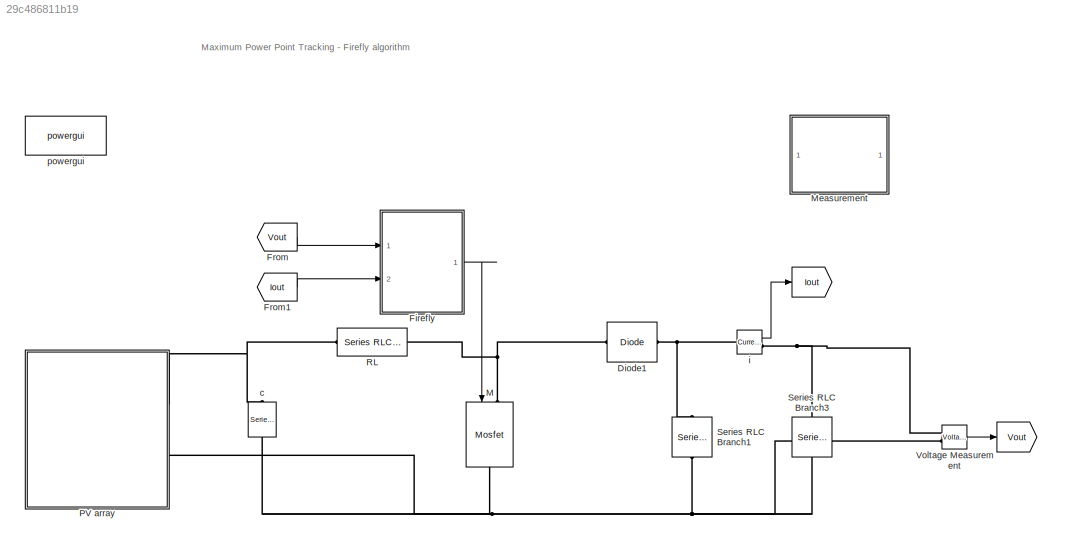
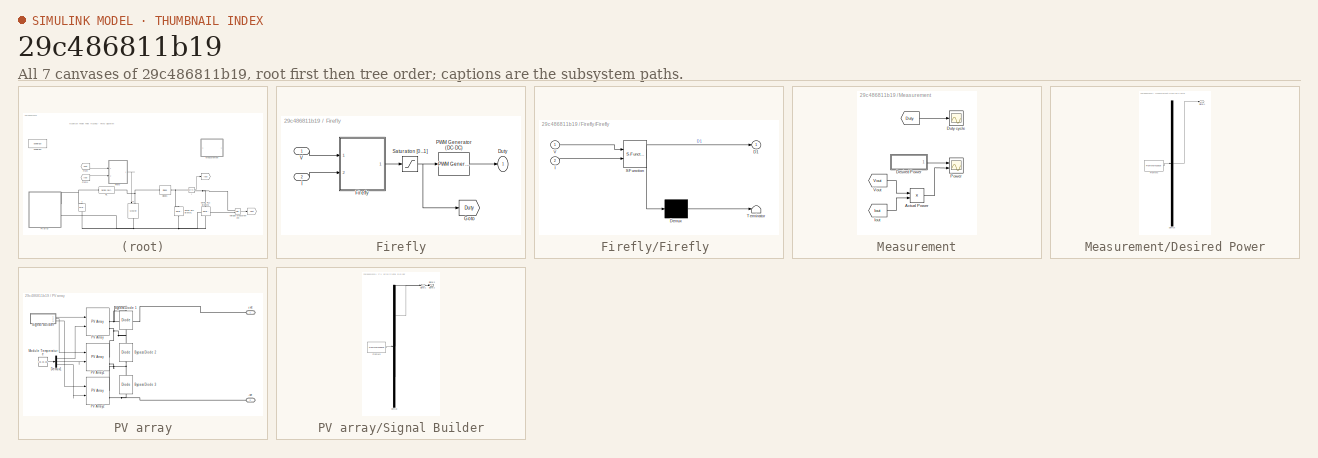
[diagram: thumbnail index - all 7 canvases of the model, root first then tree order]
MODEL slx_29c486811b19
KIND model
CONFIG AbsTol = auto
CONFIG EnableMultiTasking = off
CONFIG FixedStep = auto
CONFIG MaxStep = 1e-4
CONFIG MinStep = auto
CONFIG RelTol = 1e-3
CONFIG SampleTimeConstraint = Unconstrained
CONFIG Solver = ode23s
CONFIG SolverName = ode23s
CONFIG StartTime = 0.0
CONFIG StopTime = 10
BLOCK [Goto]        
  GotoTag = Iout
  TagVisibility = global
BLOCK [Goto]                    
  GotoTag = Vout
  TagVisibility = global
BLOCK [Reference] Diode1  REF=powerlib/Power
Electronics/Diode
  Ports = [0, 0, 0, 0, 0, 1, 1]
  SourceBlock = powerlib/Power\nElectronics/Diode
  SourceProductBaseCode = PS
  SourceProductName = Simscape Power Systems
  SourceType = Diode
BLOCK [SubSystem] Firefly
  Ports = [2, 1]
  RequestExecContextInheritance = off
BLOCK [Outport] Firefly/Duty
  IconDisplay = Port number
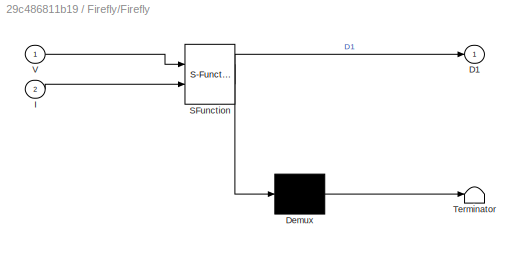
BLOCK [SubSystem] Firefly/Firefly 
  ErrorFcn = Stateflow.Translate.translate
  PermitHierarchicalResolution = ExplicitOnly
  Ports = [2, 1]
  RequestExecContextInheritance = off
  SFBlockType = MATLAB Function
  TreatAsAtomicUnit = on
BLOCK [Demux] Firefly/Firefly / Demux 
  Outputs = 1
  Ports = [1, 1]
BLOCK [S-Function] Firefly/Firefly / SFunction 
  EnableBusSupport = off
  FunctionName = sf_sfun
  PortCounts = [2 2]
  Ports = [2, 2]
  SFcnIsStateOwnerBlock = off
  SFunctionDeploymentMode = off
  Tag = Stateflow S-Function MPPT_Firefly 2
BLOCK [Terminator] Firefly/Firefly / Terminator 
BLOCK [Outport] Firefly/Firefly /D1
  IconDisplay = Port number
BLOCK [Inport] Firefly/Firefly /I
  IconDisplay = Port number
  Port = 2
BLOCK [Inport] Firefly/Firefly /V
  IconDisplay = Port number
BLOCK [Goto] Firefly/Goto
  GotoTag = Duty
  TagVisibility = global
BLOCK [Inport] Firefly/I 
  IconDisplay = Port number
  Port = 2
BLOCK [Reference] Firefly/PWM Generator (DC-DC)  REF=powerlib_meascontrol/Pulse & Signal
Generators/PWM Generator
(DC-DC)
  Ports = [1, 1]
  SourceBlock = powerlib_meascontrol/Pulse & Signal\nGenerators/PWM Generator\n(DC-DC)
  SourceProductBaseCode = PS
  SourceProductName = Simscape Power Systems
  SourceType = PWM Generator (DC-DC)
BLOCK [Saturate] Firefly/Saturation [0...1]
  InputPortMap = u0
  LowerLimit = 0
  Ports = [1, 1]
  UpperLimit = 1
BLOCK [Inport] Firefly/V
  IconDisplay = Port number
BLOCK [From] From
  GotoTag = Vout
  TagVisibility = global
BLOCK [From] From1
  GotoTag = Iout
  TagVisibility = global
BLOCK [Reference] M  REF=powerlib/Power
Electronics/Mosfet
  Ports = [1, 0, 0, 0, 0, 1, 1]
  SourceBlock = powerlib/Power\nElectronics/Mosfet
  SourceProductBaseCode = PS
  SourceProductName = Simscape Power Systems
  SourceType = Mosfet
BLOCK [SubSystem] Measurement
  Ports = []
  RequestExecContextInheritance = off
BLOCK [From] Measurement/ 
  GotoTag = Duty
  TagVisibility = global
BLOCK [Product] Measurement/Actual Power
  InputSameDT = off
  OutDataTypeStr = Inherit: Inherit via internal rule
  Ports = [2, 1]
  RndMeth = Floor
  SaturateOnIntegerOverflow = off
BLOCK [SubSystem] Measurement/Desired Power
  ClipboardFcn = sigbuilder_block('clipboard');
  CloseFcn = sigbuilder_block('close');
  ContinueFcn = sigbuilder_block('continue');
  CopyFcn = sigbuilder_block('copy');
  DeleteFcn = sigbuilder_block('delete');
  LoadFcn = sigbuilder_block('load');
  MaskHideContents = on
  ModelCloseFcn = sigbuilder_block('modelClose');
  NameChangeFcn = sigbuilder_block('namechange');
  OpenFcn = sigbuilder_block('open',[437.25 153 550.5 359.25 ]);
  PauseFcn = sigbuilder_block('pause');
  Ports = [0, 1]
  PreSaveFcn = sigbuilder_block('preSave');
  RequestExecContextInheritance = off
  StartFcn = sigbuilder_block('start');
  StopFcn = sigbuilder_block('stop');
  Tag = STV Subsys
BLOCK [Demux] Measurement/Desired Power/Demux
  Outputs = 1
  Ports = [1, 1]
  Tag = STV Demux
BLOCK [FromWorkspace] Measurement/Desired Power/FromWs
  SampleTime = 0
  Tag = STV FromWs
  VariableName = tuvar
  ZeroCross = on
BLOCK [Outport] Measurement/Desired Power/Signal 1
  IconDisplay = Port number
  Tag = STV Outport
BLOCK [Scope] Measurement/Duty cycle
  Floating = off
  NumInputPorts = 1
  Ports = [1]
  ScopeSpecificationString = Simulink.scopes.TimeScopeBlockCfg('CurrentConfiguration', extmgr.ConfigurationSet(extmgr.Configuration('Core','General UI',true),extmgr.Configuration('Core','Source UI',true),extmgr.Configuration('Sources','WiredSimulink',true,'DataLoggingVariableName','ScopeData1'),extmgr.Configuration('Visuals','Time Domain',true,'SerializedDisplays',{struct('MinYLimReal','-0.08758','MaxYLimReal','1.06529','YLab...<+1431ch>
BLOCK [From] Measurement/Iout
  GotoTag = Iout
  TagVisibility = global
BLOCK [Scope] Measurement/Power
  Floating = off
  NumInputPorts = 2
  Ports = [2]
  ScopeSpecificationString = Simulink.scopes.TimeScopeBlockCfg('CurrentConfiguration', extmgr.ConfigurationSet(extmgr.Configuration('Core','General UI',true),extmgr.Configuration('Core','Source UI',true),extmgr.Configuration('Sources','WiredSimulink',true,'DataLoggingVariableName','ScopeData1'),extmgr.Configuration('Visuals','Time Domain',true,'SerializedDisplays',{struct('MinYLimReal','-12.59191','MaxYLimReal','113.3272','YL...<+2279ch>
BLOCK [From] Measurement/Vout
  GotoTag = Vout
  TagVisibility = global
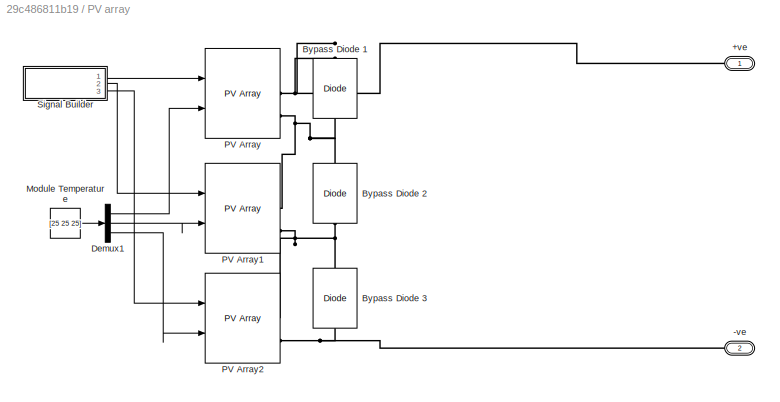
BLOCK [SubSystem] PV array
  Ports = [0, 0, 0, 0, 0, 0, 2]
  RequestExecContextInheritance = off
BLOCK [PMIOPort] PV array/ +ve
  Side = Right
BLOCK [PMIOPort] PV array/-ve
  Port = 2
  Side = Right
BLOCK [Reference] PV array/Bypass Diode 1  REF=powerlib/Power
Electronics/Diode
  Ports = [0, 0, 0, 0, 0, 1, 1]
  SourceBlock = powerlib/Power\nElectronics/Diode
  SourceProductBaseCode = PS
  SourceProductName = Simscape Power Systems
  SourceType = Diode
BLOCK [Reference] PV array/Bypass Diode 2  REF=powerlib/Power
Electronics/Diode
  Ports = [0, 0, 0, 0, 0, 1, 1]
  SourceBlock = powerlib/Power\nElectronics/Diode
  SourceProductBaseCode = PS
  SourceProductName = Simscape Power Systems
  SourceType = Diode
BLOCK [Reference] PV array/Bypass Diode 3  REF=powerlib/Power
Electronics/Diode
  Ports = [0, 0, 0, 0, 0, 1, 1]
  SourceBlock = powerlib/Power\nElectronics/Diode
  SourceProductBaseCode = PS
  SourceProductName = Simscape Power Systems
  SourceType = Diode
BLOCK [Demux] PV array/Demux1
  DisplayOption = bar
  Outputs = 3
  Ports = [1, 3]
BLOCK [Constant] PV array/Module Temperature
  Value = [25 25 25]
BLOCK [Reference] PV array/PV Array  REF=re_lib/Solar/PV Array
  Ports = [2, 1, 0, 0, 0, 0, 2]
  SourceBlock = re_lib/Solar/PV Array
  SourceProductBaseCode = PS
  SourceProductName = Simscape Power Systems
  SourceType = PV array
BLOCK [Reference] PV array/PV Array1  REF=re_lib/Solar/PV Array
  Ports = [2, 1, 0, 0, 0, 0, 2]
  SourceBlock = re_lib/Solar/PV Array
  SourceProductBaseCode = PS
  SourceProductName = Simscape Power Systems
  SourceType = PV array
BLOCK [Reference] PV array/PV Array2  REF=re_lib/Solar/PV Array
  Ports = [2, 1, 0, 0, 0, 0, 2]
  SourceBlock = re_lib/Solar/PV Array
  SourceProductBaseCode = PS
  SourceProductName = Simscape Power Systems
  SourceType = PV array
BLOCK [SubSystem] PV array/Signal Builder
  ClipboardFcn = sigbuilder_block('clipboard');
  CloseFcn = sigbuilder_block('close');
  ContinueFcn = sigbuilder_block('continue');
  CopyFcn = sigbuilder_block('copy');
  DeleteFcn = sigbuilder_block('delete');
  LoadFcn = sigbuilder_block('load');
  MaskHideContents = on
  ModelCloseFcn = sigbuilder_block('modelClose');
  NameChangeFcn = sigbuilder_block('namechange');
  OpenFcn = sigbuilder_block('open',[437.25 153 550.5 359.25 ]);
  PauseFcn = sigbuilder_block('pause');
  Ports = [0, 3]
  PreSaveFcn = sigbuilder_block('preSave');
  RequestExecContextInheritance = off
  StartFcn = sigbuilder_block('start');
  StopFcn = sigbuilder_block('stop');
  Tag = STV Subsys
BLOCK [Demux] PV array/Signal Builder/Demux
  Outputs = 3
  Ports = [1, 3]
  Tag = STV Demux
BLOCK [FromWorkspace] PV array/Signal Builder/FromWs
  SampleTime = 0
  Tag = STV FromWs
  VariableName = tuvar
  ZeroCross = on
BLOCK [Outport] PV array/Signal Builder/Signal 1
  IconDisplay = Port number
  Tag = STV Outport
BLOCK [Outport] PV array/Signal Builder/Signal 2
  IconDisplay = Port number
  Port = 2
  Tag = STV Outport
BLOCK [Outport] PV array/Signal Builder/Signal 3
  IconDisplay = Port number
  Port = 3
  Tag = STV Outport
BLOCK [Reference] RL  REF=powerlib/Elements/Series RLC Branch
  Ports = [0, 0, 0, 0, 0, 1, 1]
  SourceBlock = powerlib/Elements/Series RLC Branch
  SourceProductBaseCode = PS
  SourceProductName = Simscape Power Systems
  SourceType = Series RLC Branch
BLOCK [Reference] Series RLC Branch1  REF=powerlib/Elements/Series RLC Branch
  Ports = [0, 0, 0, 0, 0, 1, 1]
  SourceBlock = powerlib/Elements/Series RLC Branch
  SourceProductBaseCode = PS
  SourceProductName = Simscape Power Systems
  SourceType = Series RLC Branch
BLOCK [Reference] Series RLC Branch3  REF=powerlib/Elements/Series RLC Branch
  Ports = [0, 0, 0, 0, 0, 1, 1]
  SourceBlock = powerlib/Elements/Series RLC Branch
  SourceProductBaseCode = PS
  SourceProductName = Simscape Power Systems
  SourceType = Series RLC Branch
BLOCK [Reference] Voltage Measurement  REF=powerlib/Measurements/Voltage Measurement
  Ports = [0, 1, 0, 0, 0, 2]
  SourceBlock = powerlib/Measurements/Voltage Measurement
  SourceProductBaseCode = PS
  SourceProductName = Simscape Power Systems
  SourceType = Voltage Measurement
  UserDataPersistent = on
BLOCK [Reference] c  REF=powerlib/Elements/Series RLC Branch
  Ports = [0, 0, 0, 0, 0, 1, 1]
  SourceBlock = powerlib/Elements/Series RLC Branch
  SourceProductBaseCode = PS
  SourceProductName = Simscape Power Systems
  SourceType = Series RLC Branch
BLOCK [Reference] i  REF=powerlib/Measurements/Current Measurement
  Ports = [0, 1, 0, 0, 0, 1, 1]
  SourceBlock = powerlib/Measurements/Current Measurement
  SourceProductBaseCode = PS
  SourceProductName = Simscape Power Systems
  SourceType = Current Measurement
  UserDataPersistent = on
BLOCK [Reference] powergui  REF=powerlib/powergui
  Ports = []
  Priority = 1
  SourceBlock = powerlib/powergui
  SourceProductBaseCode = PS
  SourceProductName = Simscape Power Systems
  SourceType = PSB option menu block
ANNOTATION (root): Maximum Power Point Tracking - Firefly algorithm
LINE Firefly/Firefly :1 -> Firefly/Saturation [0...1]:1
LINE Firefly/I :1 -> Firefly/Firefly :2
LINE Firefly/PWM Generator (DC-DC):1 -> Firefly/Duty:1
NET Firefly/Saturation [0...1]:1 -> Firefly/Goto:1, Firefly/PWM Generator (DC-DC):1
LINE Firefly/V:1 -> Firefly/Firefly :1
LINE Firefly:1 -> M:1
LINE From1:1 -> Firefly:2
LINE From:1 -> Firefly:1
LINE Measurement/ :1 -> Measurement/Duty cycle:1
LINE Measurement/Actual Power:1 -> Measurement/Power:2
LINE Measurement/Desired Power:1 -> Measurement/Power:1
LINE Measurement/Iout:1 -> Measurement/Actual Power:2
LINE Measurement/Vout:1 -> Measurement/Actual Power:1
LINE PV array/Demux1:1 -> PV array/PV Array:2
LINE PV array/Demux1:2 -> PV array/PV Array1:2
LINE PV array/Demux1:3 -> PV array/PV Array2:2
LINE PV array/Module Temperature:1 -> PV array/Demux1:1
LINE PV array/Signal Builder:1 -> PV array/PV Array:1
LINE PV array/Signal Builder:2 -> PV array/PV Array1:1
LINE PV array/Signal Builder:3 -> PV array/PV Array2:1
LINE Voltage Measurement:1 ->                    :1
LINE i:1 ->        :1
PNET net1: Diode1:LConn1 -- M:LConn1 -- RL:RConn1
PNET net2: Diode1:RConn1 -- Series RLC Branch1:LConn1 -- i:LConn1
PNET net3: M:RConn1 -- PV array:RConn2 -- Series RLC Branch1:RConn1 -- Series RLC Branch3:RConn1 -- Voltage Measurement:LConn2 -- c:RConn1
PNET net4: PV array/ +ve:RConn1 -- PV array/Bypass Diode 1:RConn1 -- PV array/PV Array:RConn1
PNET net5: PV array/-ve:RConn1 -- PV array/Bypass Diode 3:LConn1 -- PV array/PV Array2:RConn2
PNET net6: PV array/Bypass Diode 1:LConn1 -- PV array/Bypass Diode 2:RConn1 -- PV array/PV Array1:RConn1 -- PV array/PV Array:RConn2
PNET net7: PV array/Bypass Diode 2:LConn1 -- PV array/Bypass Diode 3:RConn1 -- PV array/PV Array1:RConn2 -- PV array/PV Array2:RConn1
PNET net8: PV array:RConn1 -- RL:LConn1 -- c:LConn1
PNET net9: Series RLC Branch3:LConn1 -- Voltage Measurement:LConn1 -- i:RConn1
note: NET lines group one-source signal fan-out (src -> all destinations, sorted); 1:1 wires keep LINE; PNET lines group multi-terminal physical nets as a canonical sorted terminal list (undirected conserving connections); 2-terminal nets keep the pairwise PLINE form
CHART Firefly/Firefly
 states=1 transitions=1
  STATE_LABEL 'eML_blk_kernel()'
  STATE_LABEL 'SCRIPT:\nfunction D1 = PSO(V,I)\npersistent q w P initialization itteration power  r beta dcurrent counter current_dutycycl velocity current_power local_best_power local_best_dutycycl globl_best_dutycycl global_best_power\n\nD1 = 0.05;\nif isempty(q)\n    q=1;\nend\n\nif isempty(w)\n    w=1;\nend\n\nif isempty(P)\n    P=zeros(1,3);\nend\n\nif isempty(initialization)\n    initialization=1;\nend\n\nif isempty(itteration...<+3608ch>'
